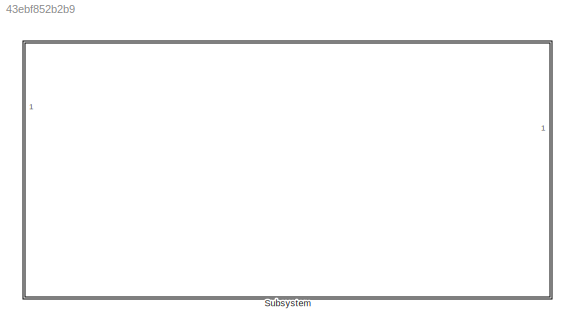
MODEL slx_43ebf852b2b9
KIND model
CONFIG AbsTol = auto
CONFIG EnableMultiTasking = off
CONFIG FixedStep = auto
CONFIG MaxStep = auto
CONFIG MinStep = auto
CONFIG RelTol = 1e-3
CONFIG SampleTimeConstraint = Unconstrained
CONFIG SolverName = VariableStepAuto
CONFIG StartTime = 0.0
CONFIG StopTime = 10.0
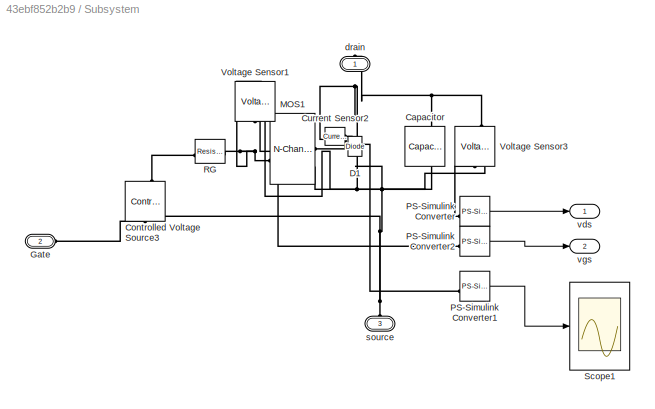
BLOCK [SubSystem] Subsystem
BLOCK [Reference] Subsystem/Capacitor  REF=fl_lib/Electrical/Electrical Elements/Capacitor
  NameLocation = left
  SourceBlock = fl_lib/Electrical/Electrical Elements/Capacitor
  SourceType = Capacitor
BLOCK [Reference] Subsystem/Controlled Voltage Source3  REF=fl_lib/Electrical/Electrical Sources/Controlled Voltage
Source
  NameLocation = right
  SourceBlock = fl_lib/Electrical/Electrical Sources/Controlled Voltage\nSource
  SourceType = Controlled Voltage\nSource
BLOCK [Reference] Subsystem/Current Sensor2  REF=fl_lib/Electrical/Electrical Sensors/Current Sensor
  NameLocation = top
  SourceBlock = fl_lib/Electrical/Electrical Sensors/Current Sensor
  SourceType = Current Sensor
BLOCK [Reference] Subsystem/D1  REF=ee_lib/Semiconductors &
Converters/Diode
  NameLocation = right
  SourceBlock = ee_lib/Semiconductors &\nConverters/Diode
  SourceType = Diode
BLOCK [PMIOPort] Subsystem/Gate
  Port = 2
  Side = Left
BLOCK [Reference] Subsystem/MOS1  REF=ee_lib/Semiconductors &
Converters/N-Channel MOSFET
  SourceBlock = ee_lib/Semiconductors &\nConverters/N-Channel MOSFET
  SourceType = N-Channel MOSFET
BLOCK [Reference] Subsystem/PS-Simulink Converter  REF=nesl_utility/PS-Simulink
Converter
  SourceBlock = nesl_utility/PS-Simulink\nConverter
  SourceType = PS-Simulink\nConverter
BLOCK [Reference] Subsystem/PS-Simulink Converter1  REF=nesl_utility/PS-Simulink
Converter
  SourceBlock = nesl_utility/PS-Simulink\nConverter
  SourceType = PS-Simulink\nConverter
BLOCK [Reference] Subsystem/PS-Simulink Converter2  REF=nesl_utility/PS-Simulink
Converter
  SourceBlock = nesl_utility/PS-Simulink\nConverter
  SourceType = PS-Simulink\nConverter
BLOCK [Reference] Subsystem/RG  REF=fl_lib/Electrical/Electrical Elements/Resistor
  SourceBlock = fl_lib/Electrical/Electrical Elements/Resistor
  SourceType = Resistor
BLOCK [Scope] Subsystem/Scope1
  Floating = off
  NumInputPorts = 1
  ScopeSpecificationString = Simulink.scopes.TimeScopeBlockCfg('CurrentConfiguration', extmgr.ConfigurationSet(extmgr.Configuration('Core','General UI',true),extmgr.Configuration('Core','Source UI',true),extmgr.Configuration('Sources','WiredSimulink',true,'DataLoggingSaveFormat','Array','DataLoggingDecimation','1','DataLoggingDecimateData',true),extmgr.Configuration('Visuals','Time Domain',true,'SerializedDisplays',{struct('M...<+3710ch>
BLOCK [Reference] Subsystem/Voltage Sensor1  REF=fl_lib/Electrical/Electrical Sensors/Voltage Sensor
  NameLocation = right
  SourceBlock = fl_lib/Electrical/Electrical Sensors/Voltage Sensor
  SourceType = Voltage Sensor
BLOCK [Reference] Subsystem/Voltage Sensor3  REF=fl_lib/Electrical/Electrical Sensors/Voltage Sensor
  NameLocation = right
  SourceBlock = fl_lib/Electrical/Electrical Sensors/Voltage Sensor
  SourceType = Voltage Sensor
BLOCK [PMIOPort] Subsystem/drain
  NameLocation = right
  Side = Right
BLOCK [PMIOPort] Subsystem/source
  NameLocation = right
  Port = 3
  Side = Left
BLOCK [Outport] Subsystem/vds
BLOCK [Outport] Subsystem/vgs
  Port = 2
LINE Subsystem/PS-Simulink Converter1:1 -> Subsystem/Scope1:1
LINE Subsystem/PS-Simulink Converter2:1 -> Subsystem/vgs:1
LINE Subsystem/PS-Simulink Converter:1 -> Subsystem/vds:1
PNET net1: Subsystem/Capacitor:LConn1 -- Subsystem/Current Sensor2:LConn1 -- Subsystem/D1:RConn1 -- Subsystem/Voltage Sensor3:LConn1 -- Subsystem/drain:RConn1
PNET net2: Subsystem/Capacitor:RConn1 -- Subsystem/Controlled Voltage Source3:RConn2 -- Subsystem/D1:LConn1 -- Subsystem/MOS1:RConn2 -- Subsystem/Voltage Sensor1:RConn2 -- Subsystem/Voltage Sensor3:RConn2 -- Subsystem/source:RConn1
PLINE Subsystem/Controlled Voltage Source3:LConn1 -- Subsystem/RG:LConn1
PLINE Subsystem/Controlled Voltage Source3:RConn1 -- Subsystem/Gate:RConn1
PLINE Subsystem/Current Sensor2:RConn1 -- Subsystem/PS-Simulink Converter1:LConn1
PLINE Subsystem/Current Sensor2:RConn2 -- Subsystem/MOS1:RConn1
PNET net3: Subsystem/MOS1:LConn1 -- Subsystem/RG:RConn1 -- Subsystem/Voltage Sensor1:LConn1
PLINE Subsystem/PS-Simulink Converter2:LConn1 -- Subsystem/Voltage Sensor1:RConn1
PLINE Subsystem/PS-Simulink Converter:LConn1 -- Subsystem/Voltage Sensor3:RConn1
note: PNET lines group multi-terminal physical nets as a canonical sorted terminal list (undirected conserving connections); 2-terminal nets keep the pairwise PLINE form
